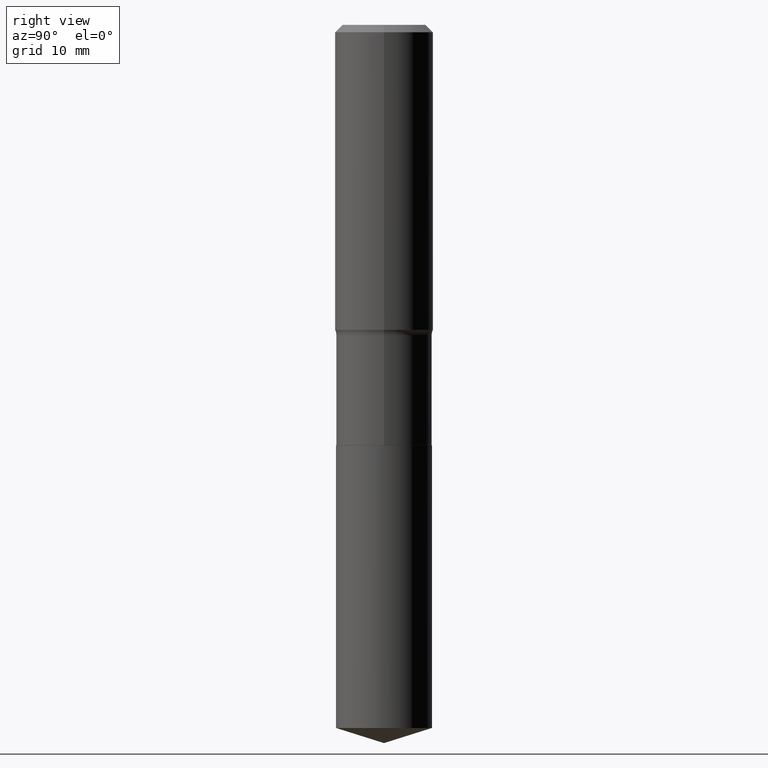
[diagram: clean part render]
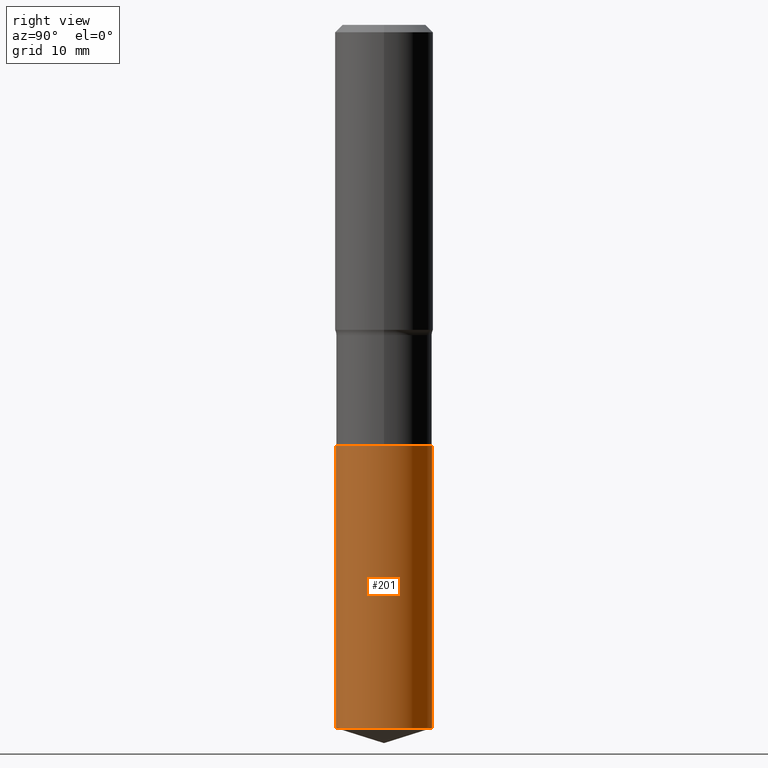
[diagram: same view with one face highlighted and labeled with its STEP entity id]
A machine part, right view. The second image highlights one B-rep face of the part: STEP entity #201.
In plain terms, the highlighted cylindrical surface (partial cylindrical patch) has radius 7.7394 mm, axis along (-0, 0, 1).
Its self-contained STEP definition (entity closure, byte-faithful):
#27 = EDGE_CURVE ( 'NONE', #488, #91, #196, .T. ) ;
#29 = ORIENTED_EDGE ( 'NONE', *, *, #275, .T. ) ;
#53 = DIRECTION ( 'NONE',  ( -6.982962677686265922E-15, -1.000000000000000000, 3.586278954596997549E-15 ) ) ;
#78 = CARTESIAN_POINT ( 'NONE',  ( 1.092318771052631368E-28, -1.559348320336168709E-14, -4.466428459028574771 ) ) ;
#85 = DIRECTION ( 'NONE',  ( -2.445845639949451117E-29, 3.490941691444601901E-15, 1.000000000000000000 ) ) ;
#91 = VERTEX_POINT ( 'NONE', #166 ) ;
#97 = VERTEX_POINT ( 'NONE', #207 ) ;
#105 = VECTOR ( 'NONE', #85, 39.37007874015748143 ) ;
#114 = LINE ( 'NONE', #465, #446 ) ;
#121 = LINE ( 'NONE', #426, #105 ) ;
#122 = DIRECTION ( 'NONE',  ( -2.445845639949451117E-29, 3.490941691444601901E-15, 1.000000000000000000 ) ) ;
#145 = EDGE_CURVE ( 'NONE', #97, #91, #121, .T. ) ;
#150 = FACE_OUTER_BOUND ( 'NONE', #486, .T. ) ;
#151 = CYLINDRICAL_SURFACE ( 'NONE', #400, 0.3047000000000000264 ) ;
#166 = CARTESIAN_POINT ( 'NONE',  ( 2.165023715861134317E-15, 0.3046999999999907005, -2.671900000000000386 ) ) ;
#192 = DIRECTION ( 'NONE',  ( -2.445845639949451117E-29, 3.490941691444601507E-15, 1.000000000000000000 ) ) ;
#193 = EDGE_CURVE ( 'NONE', #442, #488, #114, .T. ) ;
#196 = CIRCLE ( 'NONE', #255, 0.3047000000000000264 ) ;
#201 = ADVANCED_FACE ( 'NONE', ( #150 ), #151, .T. ) ;
#207 = CARTESIAN_POINT ( 'NONE',  ( 2.165023715861135500E-15, 0.3046999999999844833, -4.466428459028575659 ) ) ;
#218 = ORIENTED_EDGE ( 'NONE', *, *, #27, .F. ) ;
#236 = CIRCLE ( 'NONE', #298, 0.3047000000000000264 ) ;
#244 = ORIENTED_EDGE ( 'NONE', *, *, #193, .F. ) ;
#245 = CARTESIAN_POINT ( 'NONE',  ( -2.127708727890939988E-15, -0.3047000000000093523, -2.671899999999998165 ) ) ;
#255 = AXIS2_PLACEMENT_3D ( 'NONE', #257, #409, #53 ) ;
#257 = CARTESIAN_POINT ( 'NONE',  ( 6.534048103246064579E-29, -9.328888989254999169E-15, -2.671899999999999498 ) ) ;
#275 = EDGE_CURVE ( 'NONE', #442, #97, #236, .T. ) ;
#296 = CARTESIAN_POINT ( 'NONE',  ( -2.127708727890896995E-15, -0.3047000000000157915, -4.466428459028572995 ) ) ;
#298 = AXIS2_PLACEMENT_3D ( 'NONE', #78, #352, #311 ) ;
#310 = CARTESIAN_POINT ( 'NONE',  ( 6.534048103246064579E-29, -9.328888989254999169E-15, -2.671899999999999498 ) ) ;
#311 = DIRECTION ( 'NONE',  ( -6.982962677686265922E-15, -1.000000000000000000, 3.586278954596997549E-15 ) ) ;
#352 = DIRECTION ( 'NONE',  ( -2.445845639949451117E-29, 3.490941691444601507E-15, 1.000000000000000000 ) ) ;
#365 = ORIENTED_EDGE ( 'NONE', *, *, #145, .T. ) ;
#400 = AXIS2_PLACEMENT_3D ( 'NONE', #310, #192, #457 ) ;
#409 = DIRECTION ( 'NONE',  ( -2.445845639949451117E-29, 3.490941691444601507E-15, 1.000000000000000000 ) ) ;
#426 = CARTESIAN_POINT ( 'NONE',  ( 2.165023715861090535E-15, 0.3046999999999907005, -2.671900000000000386 ) ) ;
#442 = VERTEX_POINT ( 'NONE', #296 ) ;
#446 = VECTOR ( 'NONE', #122, 39.37007874015748143 ) ;
#457 = DIRECTION ( 'NONE',  ( -6.982962677686265922E-15, -1.000000000000000000, 3.586278954596997549E-15 ) ) ;
#465 = CARTESIAN_POINT ( 'NONE',  ( -2.127708727890939988E-15, -0.3047000000000093523, -2.671899999999998165 ) ) ;
#486 = EDGE_LOOP ( 'NONE', ( #29, #365, #218, #244 ) ) ;
#488 = VERTEX_POINT ( 'NONE', #245 ) ;